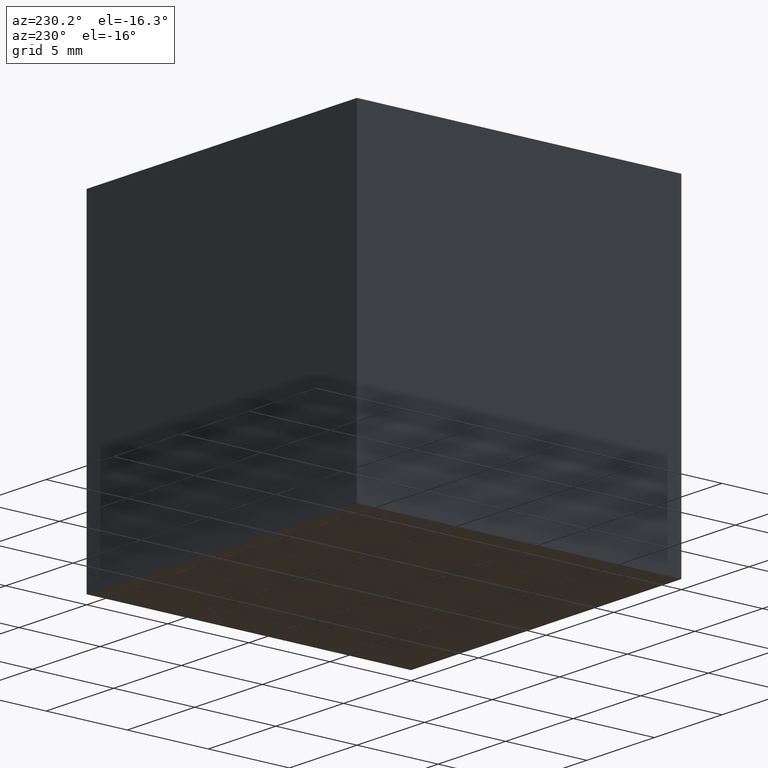
[diagram: clean part render]
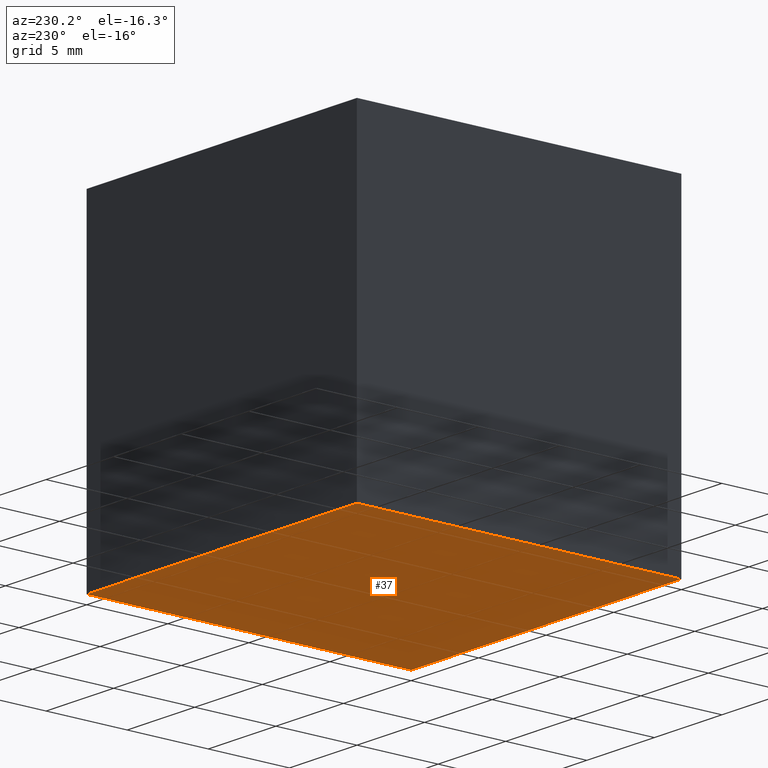
[diagram: same view with one face highlighted and labeled with its STEP entity id]
A machine part, auxiliary view. The second image highlights one B-rep face of the part: STEP entity #37.
In plain terms, the highlighted planar face has unit normal (0, -0, 1).
Its self-contained STEP definition (entity closure, byte-faithful):
#2 = EDGE_CURVE ( 'NONE', #237, #266, #287, .T. ) ;
#3 = VERTEX_POINT ( 'NONE', #76 ) ;
#26 = EDGE_CURVE ( 'NONE', #89, #3, #100, .T. ) ;
#27 = DIRECTION ( 'NONE',  ( 1.734723475976807100E-016, -0.0000000000000000000, 1.000000000000000000 ) ) ;
#32 = DIRECTION ( 'NONE',  ( -1.000000000000000000, 0.0000000000000000000, 1.734723475976807100E-016 ) ) ;
#37 = ADVANCED_FACE ( 'NONE', ( #199 ), #196, .F. ) ;
#46 = ORIENTED_EDGE ( 'NONE', *, *, #2, .F. ) ;
#49 = CARTESIAN_POINT ( 'NONE',  ( 0.0000000000000000000, 20.00000000000000000, -20.00000000000000000 ) ) ;
#63 = ORIENTED_EDGE ( 'NONE', *, *, #78, .F. ) ;
#69 = DIRECTION ( 'NONE',  ( -0.0000000000000000000, -1.000000000000000000, -0.0000000000000000000 ) ) ;
#76 = CARTESIAN_POINT ( 'NONE',  ( -20.00000000000000000, 0.0000000000000000000, -19.99999999999999600 ) ) ;
#78 = EDGE_CURVE ( 'NONE', #266, #3, #279, .T. ) ;
#83 = LINE ( 'NONE', #289, #121 ) ;
#89 = VERTEX_POINT ( 'NONE', #244 ) ;
#92 = CARTESIAN_POINT ( 'NONE',  ( -20.00000000000000000, 20.00000000000000000, -19.99999999999999600 ) ) ;
#93 = DIRECTION ( 'NONE',  ( -1.000000000000000000, 0.0000000000000000000, 1.734723475976807100E-016 ) ) ;
#100 = LINE ( 'NONE', #247, #160 ) ;
#121 = VECTOR ( 'NONE', #270, 1000.000000000000000 ) ;
#139 = AXIS2_PLACEMENT_3D ( 'NONE', #49, #27, #146 ) ;
#146 = DIRECTION ( 'NONE',  ( 1.000000000000000000, 0.0000000000000000000, -1.734723475976807100E-016 ) ) ;
#155 = EDGE_CURVE ( 'NONE', #237, #89, #83, .T. ) ;
#160 = VECTOR ( 'NONE', #93, 1000.000000000000000 ) ;
#162 = EDGE_LOOP ( 'NONE', ( #301, #63, #46, #170 ) ) ;
#170 = ORIENTED_EDGE ( 'NONE', *, *, #155, .T. ) ;
#180 = CARTESIAN_POINT ( 'NONE',  ( 0.0000000000000000000, 20.00000000000000000, -20.00000000000000000 ) ) ;
#185 = VECTOR ( 'NONE', #32, 1000.000000000000000 ) ;
#196 = PLANE ( 'NONE',  #139 ) ;
#199 = FACE_OUTER_BOUND ( 'NONE', #162, .T. ) ;
#232 = CARTESIAN_POINT ( 'NONE',  ( -20.00000000000000000, 20.00000000000000000, -19.99999999999999600 ) ) ;
#237 = VERTEX_POINT ( 'NONE', #294 ) ;
#244 = CARTESIAN_POINT ( 'NONE',  ( 0.0000000000000000000, 0.0000000000000000000, -20.00000000000000000 ) ) ;
#247 = CARTESIAN_POINT ( 'NONE',  ( 0.0000000000000000000, 0.0000000000000000000, -20.00000000000000000 ) ) ;
#266 = VERTEX_POINT ( 'NONE', #232 ) ;
#270 = DIRECTION ( 'NONE',  ( -0.0000000000000000000, -1.000000000000000000, -0.0000000000000000000 ) ) ;
#279 = LINE ( 'NONE', #92, #299 ) ;
#287 = LINE ( 'NONE', #180, #185 ) ;
#289 = CARTESIAN_POINT ( 'NONE',  ( 0.0000000000000000000, 20.00000000000000000, -20.00000000000000000 ) ) ;
#294 = CARTESIAN_POINT ( 'NONE',  ( 0.0000000000000000000, 20.00000000000000000, -20.00000000000000000 ) ) ;
#299 = VECTOR ( 'NONE', #69, 1000.000000000000000 ) ;
#301 = ORIENTED_EDGE ( 'NONE', *, *, #26, .T. ) ;